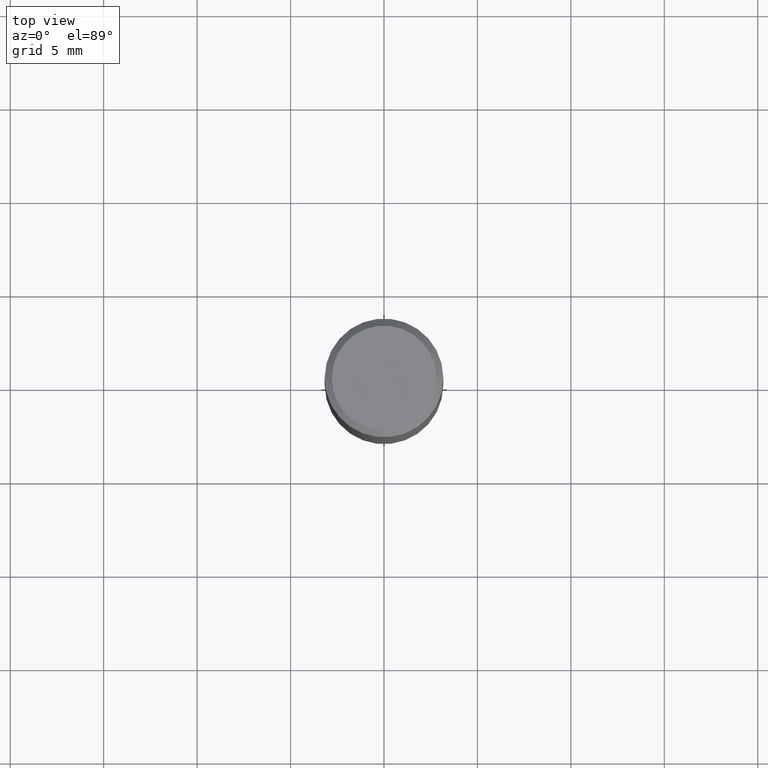
[diagram: clean part render]
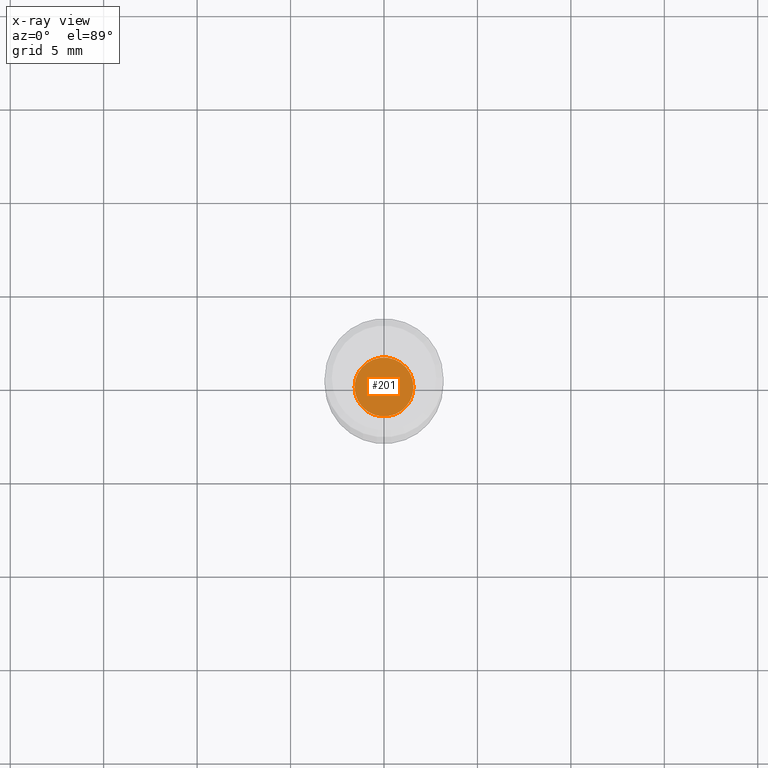
[diagram: x-ray — body ghosted, one internal face saturated and labeled with its STEP entity id]
A machine part, top view, then the same camera in x-ray: the body is ghosted and one INTERNAL B-rep face — a face not visible from any outside direction — is saturated and labeled: STEP entity #201.
In plain terms, the highlighted planar face has unit normal (-0, 0, 1).
Its self-contained STEP definition (entity closure, byte-faithful):
#12 = DIRECTION ( 'NONE',  ( 1.000000000000000000, -6.982962677686270655E-15, 0.000000000000000000 ) ) ;
#13 = VERTEX_POINT ( 'NONE', #326 ) ;
#27 = DIRECTION ( 'NONE',  ( 1.000000000000000000, -6.982962677686270655E-15, 0.000000000000000000 ) ) ;
#65 = EDGE_LOOP ( 'NONE', ( #147, #306 ) ) ;
#85 = CIRCLE ( 'NONE', #366, 0.06199999999999999956 ) ;
#131 = CARTESIAN_POINT ( 'NONE',  ( 2.751152406958279232E-29, -3.927916506198539224E-15, -1.125000000000000222 ) ) ;
#147 = ORIENTED_EDGE ( 'NONE', *, *, #361, .F. ) ;
#150 = VERTEX_POINT ( 'NONE', #354 ) ;
#200 = AXIS2_PLACEMENT_3D ( 'NONE', #424, #276, #322 ) ;
#201 = ADVANCED_FACE ( 'NONE', ( #280 ), #282, .F. ) ;
#276 = DIRECTION ( 'NONE',  ( -2.438088387897960049E-29, 3.491481338843145188E-15, 1.000000000000000000 ) ) ;
#280 = FACE_OUTER_BOUND ( 'NONE', #65, .T. ) ;
#282 = PLANE ( 'NONE',  #200 ) ;
#288 = DIRECTION ( 'NONE',  ( -2.445468806185136597E-29, 3.491481338843145583E-15, 1.000000000000000000 ) ) ;
#306 = ORIENTED_EDGE ( 'NONE', *, *, #433, .F. ) ;
#322 = DIRECTION ( 'NONE',  ( 1.000000000000000000, -6.982962677686265922E-15, 4.876176775795935793E-29 ) ) ;
#326 = CARTESIAN_POINT ( 'NONE',  ( 0.06199999999999999956, -4.360860192215087886E-15, -1.125000000000000222 ) ) ;
#345 = CARTESIAN_POINT ( 'NONE',  ( 2.751152406958279232E-29, -3.927916506198539224E-15, -1.125000000000000222 ) ) ;
#350 = CIRCLE ( 'NONE', #389, 0.06199999999999999956 ) ;
#354 = CARTESIAN_POINT ( 'NONE',  ( -0.06199999999999999956, -3.484730782853165911E-15, -1.125000000000000222 ) ) ;
#361 = EDGE_CURVE ( 'NONE', #13, #150, #350, .T. ) ;
#366 = AXIS2_PLACEMENT_3D ( 'NONE', #131, #288, #27 ) ;
#389 = AXIS2_PLACEMENT_3D ( 'NONE', #345, #421, #12 ) ;
#421 = DIRECTION ( 'NONE',  ( -2.445468806185136597E-29, 3.491481338843145583E-15, 1.000000000000000000 ) ) ;
#424 = CARTESIAN_POINT ( 'NONE',  ( 2.751152406958279232E-29, -3.927916506198539224E-15, -1.125000000000000222 ) ) ;
#433 = EDGE_CURVE ( 'NONE', #150, #13, #85, .T. ) ;